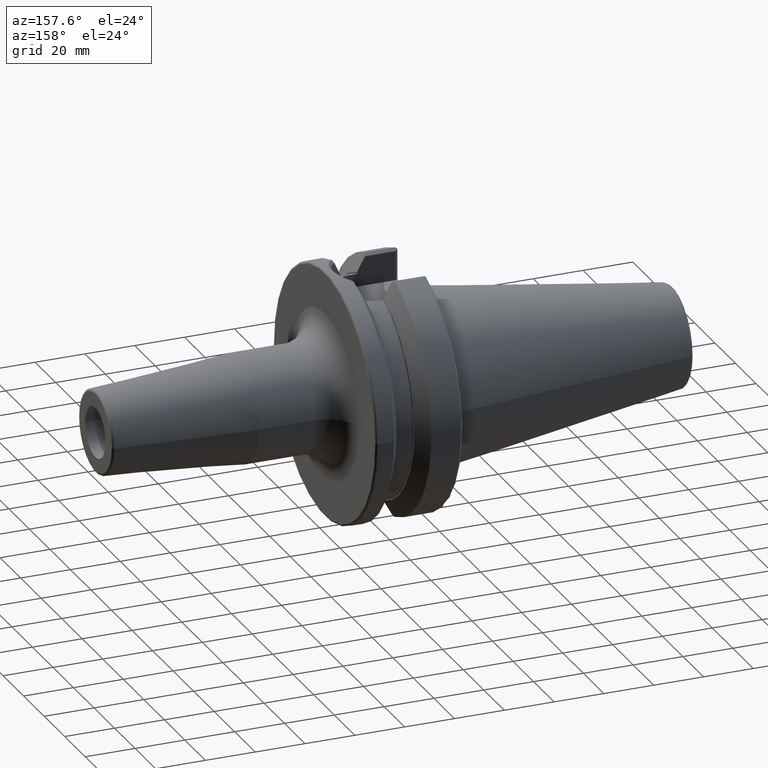
[diagram: clean part render]
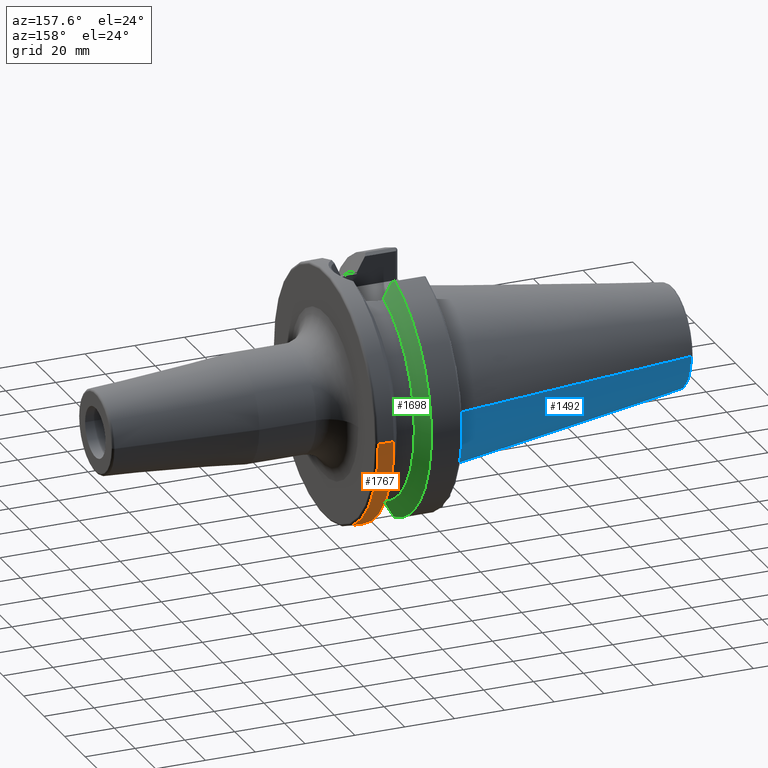
[diagram: same view with three faces highlighted in distinct colors, each labeled with its STEP entity id]
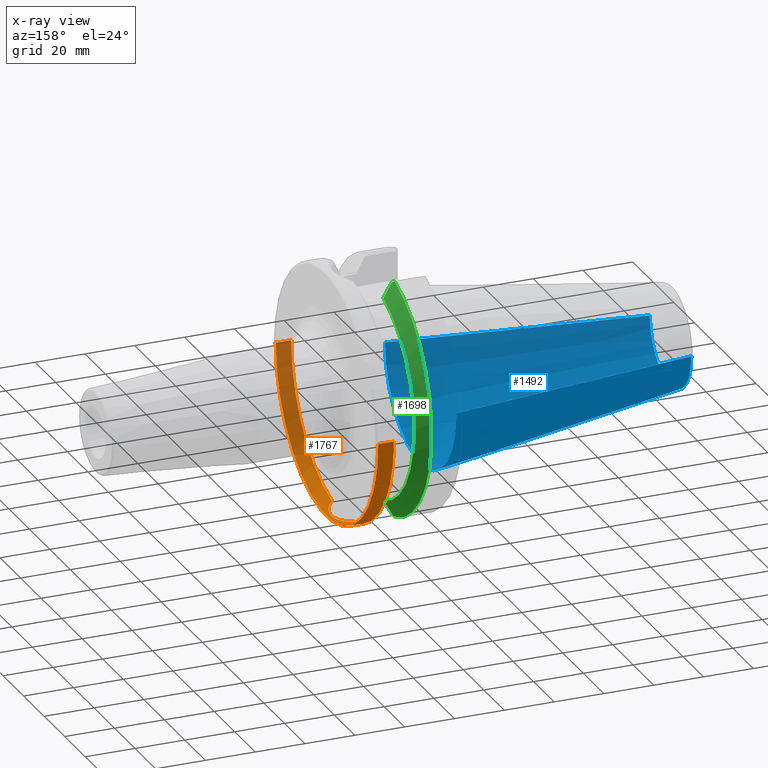
[diagram: x-ray of the same camera — body ghosted, the three highlighted faces saturated]
A machine part, auxiliary view with three faces highlighted in distinct colors.
The next image is the same camera in x-ray (body ghosted, the three faces saturated) — at least one of them is partly hidden behind the body in this view.
Their STEP definitions:

[orange] entity #1767 — the highlighted cylindrical surface (partial cylindrical patch) has radius 49.9875 mm, axis along (1, 0, 0).
#245=CARTESIAN_POINT('',(3.073066823617E1,0.E0,0.E0));
#246=DIRECTION('',(1.E0,0.E0,0.E0));
#247=DIRECTION('',(0.E0,-1.E0,0.E0));
#248=AXIS2_PLACEMENT_3D('',#245,#246,#247);
#250=DIRECTION('',(-1.E0,0.E0,0.E0));
#251=VECTOR('',#250,6.269331763825E0);
#252=CARTESIAN_POINT('',(3.7E1,-4.99875E1,0.E0));
#253=LINE('',#252,#251);
#254=CARTESIAN_POINT('',(3.7E1,0.E0,0.E0));
#255=DIRECTION('',(-1.E0,0.E0,0.E0));
#256=DIRECTION('',(0.E0,1.E0,0.E0));
#257=AXIS2_PLACEMENT_3D('',#254,#255,#256);
#259=DIRECTION('',(-1.E0,0.E0,0.E0));
#260=VECTOR('',#259,6.269331763825E0);
#261=CARTESIAN_POINT('',(3.7E1,4.99875E1,0.E0));
#262=LINE('',#261,#260);
#263=CARTESIAN_POINT('',(3.073066823617E1,0.E0,0.E0));
#264=DIRECTION('',(1.E0,0.E0,0.E0));
#265=DIRECTION('',(0.E0,2.049238320147E-1,-9.787779232657E-1));
#266=AXIS2_PLACEMENT_3D('',#263,#264,#265);
#268=CARTESIAN_POINT('',(3.073066823617E1,-1.024362896192E1,-4.892666166765E1));
#269=CARTESIAN_POINT('',(3.098270283187E1,-1.001417718341E1,-4.897470211605E1));
#270=CARTESIAN_POINT('',(3.169166615887E1,-9.319400396050E0,-4.911525921509E1));
#271=CARTESIAN_POINT('',(3.273084485343E1,-8.053271971541E0,-4.934320333096E1));
#272=CARTESIAN_POINT('',(3.373604925811E1,-6.403749543948E0,-4.958561427133E1));
#273=CARTESIAN_POINT('',(3.449815557842E1,-4.642881969044E0,-4.978242400372E1));
#274=CARTESIAN_POINT('',(3.500885094483E1,-2.803177447712E0,-4.992052659569E1));
#275=CARTESIAN_POINT('',(3.526301129761E1,-9.171953499314E-1,
-4.999110779315E1));
#276=CARTESIAN_POINT('',(3.525845754566E1,9.841660632756E-1,-4.998983236145E1));
#277=CARTESIAN_POINT('',(3.499510022915E1,2.869497687983E0,-4.991674285500E1));
#278=CARTESIAN_POINT('',(3.447534098345E1,4.706993512578E0,-4.977637056974E1));
#279=CARTESIAN_POINT('',(3.370445493838E1,6.464420400783E0,-4.957769692922E1));
#280=CARTESIAN_POINT('',(3.269088982289E1,8.109294467286E0,-4.933397361508E1));
#281=CARTESIAN_POINT('',(3.165982070584E1,9.352836362394E0,-4.910869672587E1));
#282=CARTESIAN_POINT('',(3.096569258413E1,1.002967890474E1,-4.897145777206E1));
#283=CARTESIAN_POINT('',(3.073066823617E1,1.024363005283E1,-4.892666143925E1));
#1224=CARTESIAN_POINT('',(3.073066823617E1,4.99875E1,0.E0));
#1226=VERTEX_POINT('',#1224);
#1228=CARTESIAN_POINT('',(3.073066823617E1,-4.99875E1,-1.224340637448E-14));
#1229=CARTESIAN_POINT('',(3.073066823617E1,-1.024362896192E1,
-4.892666166765E1));
#1230=VERTEX_POINT('',#1228);
#1231=VERTEX_POINT('',#1229);
#1232=CARTESIAN_POINT('',(3.7E1,4.99875E1,0.E0));
#1233=VERTEX_POINT('',#1232);
#1234=CARTESIAN_POINT('',(3.7E1,-4.99875E1,0.E0));
#1235=VERTEX_POINT('',#1234);
#1238=CARTESIAN_POINT('',(3.073066823617E1,1.024363005283E1,-4.892666143925E1));
#1239=VERTEX_POINT('',#1238);
#1748=CARTESIAN_POINT('',(-1.0879E2,0.E0,0.E0));
#1749=DIRECTION('',(1.E0,0.E0,0.E0));
#1750=DIRECTION('',(0.E0,-1.E0,0.E0));
#1751=AXIS2_PLACEMENT_3D('',#1748,#1749,#1750);
#1752=CYLINDRICAL_SURFACE('',#1751,4.99875E1);
#1754=ORIENTED_EDGE('',*,*,#1753,.F.);
#1756=ORIENTED_EDGE('',*,*,#1755,.F.);
#1758=ORIENTED_EDGE('',*,*,#1757,.F.);
#1760=ORIENTED_EDGE('',*,*,#1759,.T.);
#1762=ORIENTED_EDGE('',*,*,#1761,.F.);
#1764=ORIENTED_EDGE('',*,*,#1763,.F.);
#1765=EDGE_LOOP('',(#1754,#1756,#1758,#1760,#1762,#1764));
#1766=FACE_OUTER_BOUND('',#1765,.F.);
#1767=ADVANCED_FACE('',(#1766),#1752,.T.);
#249=CIRCLE('',#248,4.99875E1);
#258=CIRCLE('',#257,4.99875E1);
#267=CIRCLE('',#266,4.99875E1);
#284=B_SPLINE_CURVE_WITH_KNOTS('',3,(#268,#269,#270,#271,#272,#273,#274,#275,
#276,#277,#278,#279,#280,#281,#282,#283),.UNSPECIFIED.,.F.,.F.,(4,1,1,1,1,1,1,1,
1,1,1,1,1,4),(0.E0,4.360500285610E-2,1.268542736082E-1,2.101035443602E-1,
2.933528151123E-1,3.766020858644E-1,4.598513566164E-1,5.431006273685E-1,
6.263498981206E-1,7.095991688726E-1,7.928484396247E-1,8.760977103768E-1,
9.593469811288E-1,1.E0),.UNSPECIFIED.);
#1753=EDGE_CURVE('',#1230,#1231,#249,.T.);
#1755=EDGE_CURVE('',#1235,#1230,#253,.T.);
#1757=EDGE_CURVE('',#1233,#1235,#258,.T.);
#1759=EDGE_CURVE('',#1233,#1226,#262,.T.);
#1761=EDGE_CURVE('',#1239,#1226,#267,.T.);
#1763=EDGE_CURVE('',#1231,#1239,#284,.T.);

[blue] entity #1492 — the highlighted conical surface has half-angle 8.298 deg.
#32=CARTESIAN_POINT('',(-1.009443186692E2,0.E0,0.E0));
#33=DIRECTION('',(-1.E0,0.E0,0.E0));
#34=DIRECTION('',(0.E0,1.E0,0.E0));
#35=AXIS2_PLACEMENT_3D('',#32,#33,#34);
#47=DIRECTION('',(-9.895312636440E-1,-1.443186691705E-1,0.E0));
#48=VECTOR('',#47,1.013865167670E2);
#49=CARTESIAN_POINT('',(-6.191906162849E-1,3.483469384295E1,0.E0));
#50=LINE('',#49,#48);
#51=DIRECTION('',(-9.895312636440E-1,1.443186691705E-1,0.E0));
#52=VECTOR('',#51,1.013865167670E2);
#53=CARTESIAN_POINT('',(-6.191906162849E-1,-3.483469384295E1,0.E0));
#54=LINE('',#53,#52);
#55=CARTESIAN_POINT('',(-6.191906162850E-1,0.E0,0.E0));
#56=DIRECTION('',(-1.E0,0.E0,0.E0));
#57=DIRECTION('',(0.E0,1.E0,0.E0));
#58=AXIS2_PLACEMENT_3D('',#55,#56,#57);
#1168=CARTESIAN_POINT('',(-1.009443186692E2,2.020272667130E1,0.E0));
#1170=VERTEX_POINT('',#1168);
#1172=CARTESIAN_POINT('',(-1.009443186692E2,-2.020272667130E1,0.E0));
#1174=VERTEX_POINT('',#1172);
#1387=CARTESIAN_POINT('',(-6.191906162849E-1,3.483469384295E1,0.E0));
#1388=VERTEX_POINT('',#1387);
#1389=CARTESIAN_POINT('',(-6.191906162849E-1,-3.483469384295E1,0.E0));
#1390=VERTEX_POINT('',#1389);
#1480=CARTESIAN_POINT('',(-5.078175464273E1,0.E0,0.E0));
#1481=DIRECTION('',(1.E0,0.E0,0.E0));
#1482=DIRECTION('',(0.E0,-1.E0,0.E0));
#1483=AXIS2_PLACEMENT_3D('',#1480,#1481,#1482);
#1484=CONICAL_SURFACE('',#1483,2.751871025712E1,8.297826828206E0);
#1485=ORIENTED_EDGE('',*,*,#1470,.T.);
#1486=ORIENTED_EDGE('',*,*,#1447,.T.);
#1487=ORIENTED_EDGE('',*,*,#1474,.F.);
#1489=ORIENTED_EDGE('',*,*,#1488,.F.);
#1490=EDGE_LOOP('',(#1485,#1486,#1487,#1489));
#1491=FACE_OUTER_BOUND('',#1490,.F.);
#1492=ADVANCED_FACE('',(#1491),#1484,.T.);
#36=CIRCLE('',#35,2.020272667130E1);
#59=CIRCLE('',#58,3.483469384295E1);
#1447=EDGE_CURVE('',#1170,#1174,#36,.T.);
#1470=EDGE_CURVE('',#1388,#1170,#50,.T.);
#1474=EDGE_CURVE('',#1390,#1174,#54,.T.);
#1488=EDGE_CURVE('',#1388,#1390,#59,.T.);

[green] entity #1698 — the highlighted conical surface has half-angle 60 deg.
#155=CARTESIAN_POINT('',(1.622095963665E1,1.29025E1,-4.730399207105E1));
#156=CARTESIAN_POINT('',(1.662669026161E1,1.29025E1,-4.657557402361E1));
#157=CARTESIAN_POINT('',(1.742260565809E1,1.29025E1,-4.514431612004E1));
#158=CARTESIAN_POINT('',(1.856905625010E1,1.29025E1,-4.307542937668E1));
#159=CARTESIAN_POINT('',(1.930314152587E1,1.29025E1,-4.174554585365E1));
#160=CARTESIAN_POINT('',(1.96625E1,1.29025E1,-4.109315892118E1));
#199=CARTESIAN_POINT('',(1.96625E1,0.E0,0.E0));
#200=DIRECTION('',(1.E0,0.E0,0.E0));
#201=DIRECTION('',(0.E0,2.995626091154E-1,-9.540766443111E-1));
#202=AXIS2_PLACEMENT_3D('',#199,#200,#201);
#236=CARTESIAN_POINT('',(1.566933176383E1,0.E0,0.E0));
#237=DIRECTION('',(1.E0,0.E0,0.E0));
#238=DIRECTION('',(0.E0,2.773348004750E-1,-9.607733387462E-1));
#239=AXIS2_PLACEMENT_3D('',#236,#237,#238);
#619=CARTESIAN_POINT('',(1.622095963665E1,1.29025E1,-4.730399207105E1));
#620=CARTESIAN_POINT('',(1.613096430694E1,1.306014121039E1,-4.742256511233E1));
#621=CARTESIAN_POINT('',(1.594903614998E1,1.337791318372E1,-4.766158376246E1));
#622=CARTESIAN_POINT('',(1.576321741956E1,1.370065861291E1,-4.790434329853E1));
#623=CARTESIAN_POINT('',(1.566933176383E1,1.386327333875E1,-4.802665727057E1));
#629=CARTESIAN_POINT('',(1.566933176383E1,1.418629688696E1,4.793223484134E1));
#630=CARTESIAN_POINT('',(1.579541037781E1,1.396792232179E1,4.776912806803E1));
#631=CARTESIAN_POINT('',(1.604410287708E1,1.353557739826E1,4.744620408016E1));
#632=CARTESIAN_POINT('',(1.628589948132E1,1.311205342535E1,4.712986857385E1));
#633=CARTESIAN_POINT('',(1.640508297825E1,1.29025E1,4.697335042340E1));
#668=CARTESIAN_POINT('',(1.96625E1,1.29025E1,4.109315892118E1));
#669=CARTESIAN_POINT('',(1.932181966297E1,1.29025E1,4.171163717070E1));
#670=CARTESIAN_POINT('',(1.862628256782E1,1.29025E1,4.297182203666E1));
#671=CARTESIAN_POINT('',(1.754114212137E1,1.29025E1,4.493063136453E1));
#672=CARTESIAN_POINT('',(1.678855217457E1,1.29025E1,4.628456220339E1));
#673=CARTESIAN_POINT('',(1.640508297825E1,1.29025E1,4.697335042340E1));
#1216=CARTESIAN_POINT('',(1.96625E1,1.29025E1,-4.109315892118E1));
#1217=CARTESIAN_POINT('',(1.96625E1,1.29025E1,4.109315892118E1));
#1218=VERTEX_POINT('',#1216);
#1219=VERTEX_POINT('',#1217);
#1324=VERTEX_POINT('',#673);
#1332=VERTEX_POINT('',#155);
#1342=CARTESIAN_POINT('',(1.566933176383E1,1.386327333875E1,-4.802665727057E1));
#1343=CARTESIAN_POINT('',(1.566933176383E1,1.418629688696E1,4.793223484134E1));
#1344=VERTEX_POINT('',#1342);
#1345=VERTEX_POINT('',#1343);
#1681=CARTESIAN_POINT('',(1.766591588191E1,0.E0,0.E0));
#1682=DIRECTION('',(-1.E0,0.E0,0.E0));
#1683=DIRECTION('',(0.E0,1.E0,0.E0));
#1684=AXIS2_PLACEMENT_3D('',#1681,#1682,#1683);
#1685=CONICAL_SURFACE('',#1684,4.652931486589E1,6.E1);
#1687=ORIENTED_EDGE('',*,*,#1686,.F.);
#1689=ORIENTED_EDGE('',*,*,#1688,.F.);
#1690=ORIENTED_EDGE('',*,*,#1632,.T.);
#1691=ORIENTED_EDGE('',*,*,#1655,.T.);
#1693=ORIENTED_EDGE('',*,*,#1692,.T.);
#1695=ORIENTED_EDGE('',*,*,#1694,.F.);
#1696=EDGE_LOOP('',(#1687,#1689,#1690,#1691,#1693,#1695));
#1697=FACE_OUTER_BOUND('',#1696,.F.);
#1698=ADVANCED_FACE('',(#1697),#1685,.T.);
#161=B_SPLINE_CURVE_WITH_KNOTS('',3,(#155,#156,#157,#158,#159,#160),
.UNSPECIFIED.,.F.,.F.,(4,1,1,4),(0.E0,3.333333333333E-1,6.666666666667E-1,1.E0),
.UNSPECIFIED.);
#203=CIRCLE('',#202,4.307112973177E1);
#240=CIRCLE('',#239,4.99875E1);
#624=B_SPLINE_CURVE_WITH_KNOTS('',3,(#619,#620,#621,#622,#623),.UNSPECIFIED.,
.F.,.F.,(4,1,4),(0.E0,5.E-1,1.E0),.UNSPECIFIED.);
#634=B_SPLINE_CURVE_WITH_KNOTS('',3,(#629,#630,#631,#632,#633),.UNSPECIFIED.,
.F.,.F.,(4,1,4),(0.E0,5.E-1,1.E0),.UNSPECIFIED.);
#674=B_SPLINE_CURVE_WITH_KNOTS('',3,(#668,#669,#670,#671,#672,#673),
.UNSPECIFIED.,.F.,.F.,(4,1,1,4),(0.E0,3.333333333333E-1,6.666666666667E-1,1.E0),
.UNSPECIFIED.);
#1632=EDGE_CURVE('',#1332,#1218,#161,.T.);
#1655=EDGE_CURVE('',#1218,#1219,#203,.T.);
#1686=EDGE_CURVE('',#1344,#1345,#240,.T.);
#1688=EDGE_CURVE('',#1332,#1344,#624,.T.);
#1692=EDGE_CURVE('',#1219,#1324,#674,.T.);
#1694=EDGE_CURVE('',#1345,#1324,#634,.T.);